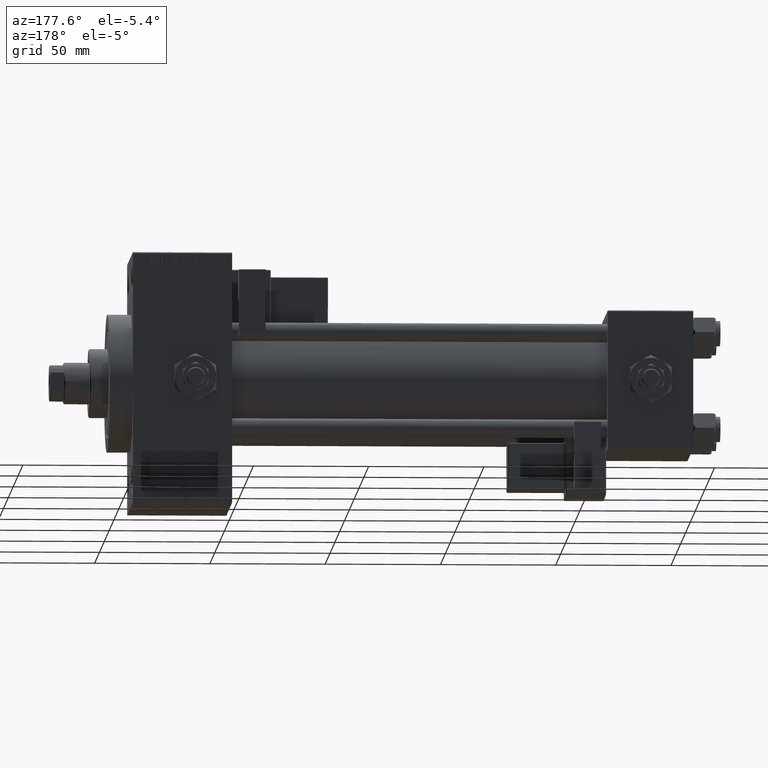
[diagram: clean part render]
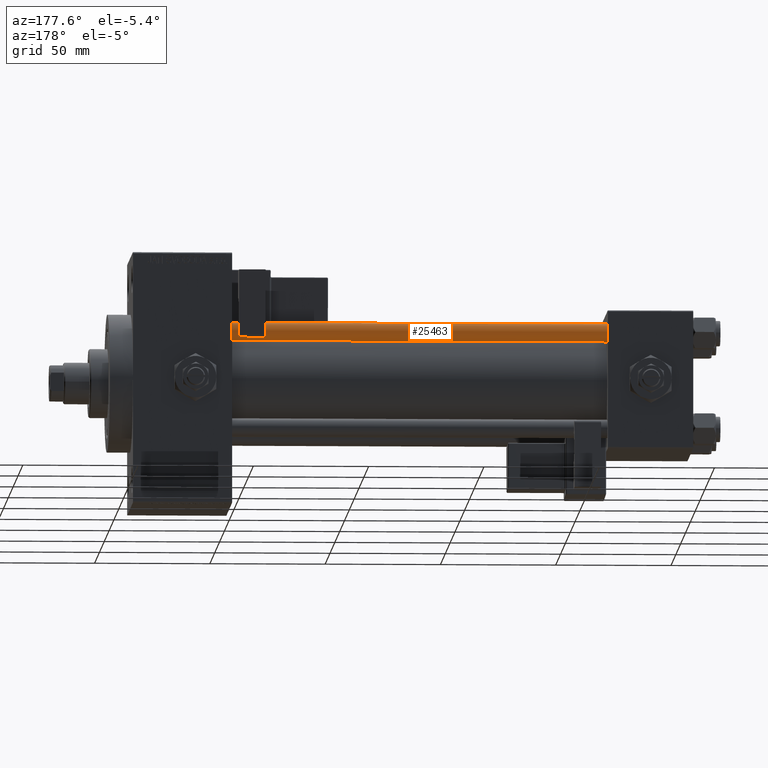
[diagram: same view with one face highlighted and labeled with its STEP entity id]
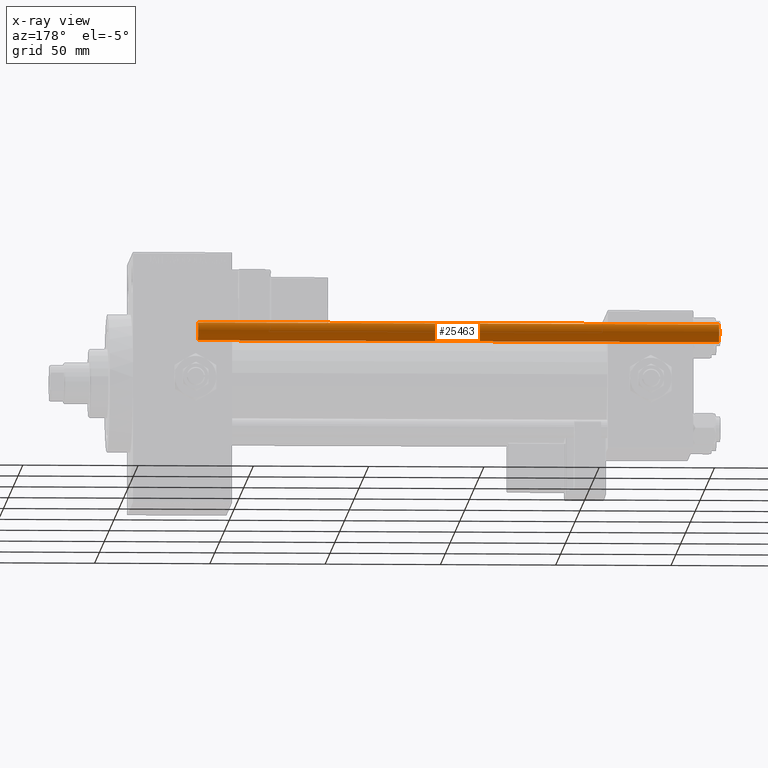
[diagram: x-ray of the same camera — body ghosted, the highlighted face saturated]
A machine part, auxiliary view. The second image highlights one B-rep face of the part: STEP entity #25463.
The next image is the same camera in x-ray: the body ghosted, the highlighted face saturated — about 0% of this face is hidden behind the body in this view.
In plain terms, the highlighted cylindrical surface (edge-blend (fillet) strip) has radius 4 mm, axis along (-1, -0, 0).
Its self-contained STEP definition (entity closure, byte-faithful):
#1288 = DIRECTION ( 'NONE',  ( -0.000000000000000000, -0.000000000000000000, -1.000000000000000000 ) ) ;
#2327 = DIRECTION ( 'NONE',  ( -0.000000000000000000, -0.000000000000000000, 1.000000000000000000 ) ) ;
#7870 = DIRECTION ( 'NONE',  ( -0.000000000000000000, -0.000000000000000000, -1.000000000000000000 ) ) ;
#8381 = CARTESIAN_POINT ( 'NONE',  ( 0.000000000000000000, 0.000000000000000000, 226.5000000000001421 ) ) ;
#9537 = AXIS2_PLACEMENT_3D ( 'NONE', #8381, #16213, #32171 ) ;
#9989 = VERTEX_POINT ( 'NONE', #14522 ) ;
#12705 = EDGE_CURVE ( 'NONE', #9989, #21395, #22686, .T. ) ;
#13389 = LINE ( 'NONE', #13898, #16597 ) ;
#13898 = CARTESIAN_POINT ( 'NONE',  ( 4.000000000000000000, 4.898587196589411843E-16, 227.0000000000000000 ) ) ;
#14077 = LINE ( 'NONE', #33953, #37901 ) ;
#14522 = CARTESIAN_POINT ( 'NONE',  ( 4.000000000000000000, 4.898587196589411843E-16, 0.5000000000002224887 ) ) ;
#14526 = CIRCLE ( 'NONE', #9537, 4.000000000000000000 ) ;
#16213 = DIRECTION ( 'NONE',  ( 0.000000000000000000, 0.000000000000000000, -1.000000000000000000 ) ) ;
#16597 = VECTOR ( 'NONE', #25428, 1000.000000000000000 ) ;
#18249 = DIRECTION ( 'NONE',  ( 1.000000000000000000, 0.000000000000000000, 0.000000000000000000 ) ) ;
#19153 = VERTEX_POINT ( 'NONE', #50132 ) ;
#20955 = EDGE_CURVE ( 'NONE', #31999, #19153, #14526, .T. ) ;
#21145 = EDGE_CURVE ( 'NONE', #31999, #21395, #14077, .T. ) ;
#21395 = VERTEX_POINT ( 'NONE', #33886 ) ;
#22686 = CIRCLE ( 'NONE', #46048, 4.000000000000000000 ) ;
#25428 = DIRECTION ( 'NONE',  ( -0.000000000000000000, -0.000000000000000000, -1.000000000000000000 ) ) ;
#25463 = ADVANCED_FACE ( 'NONE', ( #27224 ), #47602, .T. ) ;
#26136 = CARTESIAN_POINT ( 'NONE',  ( 0.000000000000000000, 0.000000000000000000, 0.5000000000002224887 ) ) ;
#27224 = FACE_OUTER_BOUND ( 'NONE', #36371, .T. ) ;
#29228 = ORIENTED_EDGE ( 'NONE', *, *, #36281, .T. ) ;
#29358 = ORIENTED_EDGE ( 'NONE', *, *, #21145, .F. ) ;
#29680 = AXIS2_PLACEMENT_3D ( 'NONE', #47088, #7870, #31928 ) ;
#30257 = ORIENTED_EDGE ( 'NONE', *, *, #20955, .T. ) ;
#31928 = DIRECTION ( 'NONE',  ( -1.000000000000000000, 0.000000000000000000, 0.000000000000000000 ) ) ;
#31999 = VERTEX_POINT ( 'NONE', #49552 ) ;
#32171 = DIRECTION ( 'NONE',  ( 1.000000000000000000, 0.000000000000000000, 0.000000000000000000 ) ) ;
#33886 = CARTESIAN_POINT ( 'NONE',  ( -4.000000000000000000, 0.000000000000000000, 0.5000000000002224887 ) ) ;
#33953 = CARTESIAN_POINT ( 'NONE',  ( -4.000000000000000000, 0.000000000000000000, 227.0000000000000000 ) ) ;
#36281 = EDGE_CURVE ( 'NONE', #19153, #9989, #13389, .T. ) ;
#36371 = EDGE_LOOP ( 'NONE', ( #30257, #29228, #41179, #29358 ) ) ;
#37901 = VECTOR ( 'NONE', #1288, 1000.000000000000000 ) ;
#41179 = ORIENTED_EDGE ( 'NONE', *, *, #12705, .T. ) ;
#46048 = AXIS2_PLACEMENT_3D ( 'NONE', #26136, #2327, #18249 ) ;
#47088 = CARTESIAN_POINT ( 'NONE',  ( 0.000000000000000000, 0.000000000000000000, 227.0000000000000000 ) ) ;
#47602 = CYLINDRICAL_SURFACE ( 'NONE', #29680, 4.000000000000000000 ) ;
#49552 = CARTESIAN_POINT ( 'NONE',  ( -4.000000000000000000, 0.000000000000000000, 226.5000000000001421 ) ) ;
#50132 = CARTESIAN_POINT ( 'NONE',  ( 4.000000000000000000, 4.898587196589411843E-16, 226.5000000000001421 ) ) ;